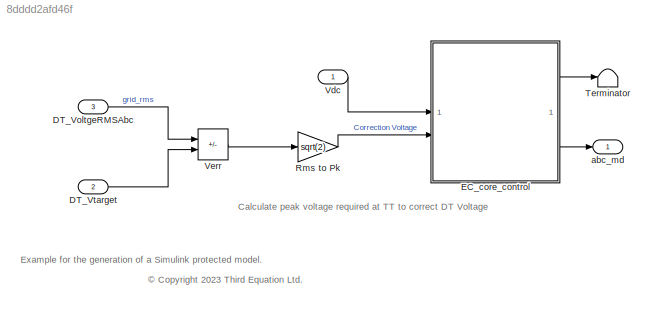
MODEL slx_8dddd2afd46f
KIND model
CONFIG AbsTol = 1e-6
CONFIG EnableMultiTasking = off
CONFIG FixedStep = auto
CONFIG MaxStep = auto
CONFIG MinStep = auto
CONFIG RelTol = 1e-4
CONFIG SampleTimeConstraint = Unconstrained
CONFIG SolverName = FixedStepAuto
CONFIG StartTime = 0.0
CONFIG StopTime = inf
BLOCK [Inport] DT_VoltgeRMSAbc
  OutDataTypeStr = single
  Port = 3
  PortDimensions = 3
  Unit = V
BLOCK [Inport] DT_Vtarget
  OutDataTypeStr = single
  Port = 2
  PortDimensions = 3
  Unit = V
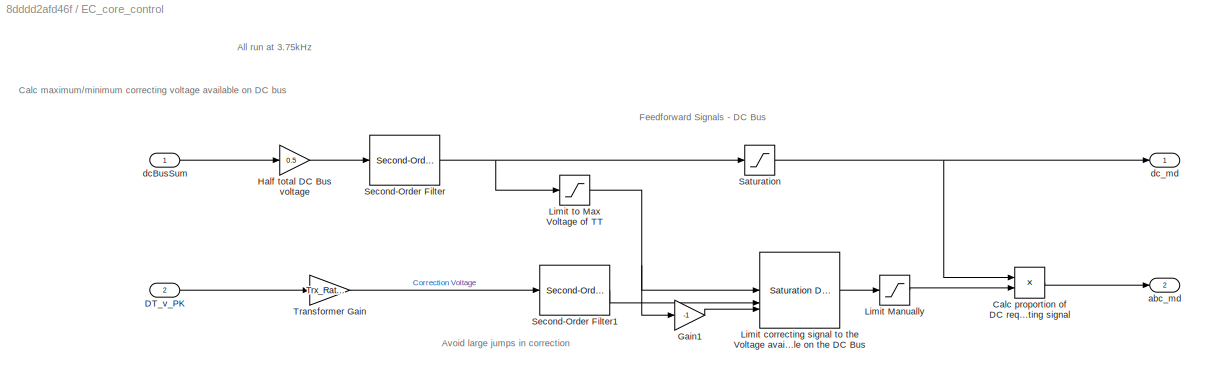
BLOCK [SubSystem] EC_core_control
BLOCK [Product] EC_core_control/Calc proportion of DC required for correcting signal
  Inputs = /*
  OutDataTypeStr = single
BLOCK [Inport] EC_core_control/DT_v_PK
  Port = 2
BLOCK [Gain] EC_core_control/Gain1
  Gain = -1
  OutDataTypeStr = single
  ParamDataTypeStr = single
BLOCK [Gain] EC_core_control/Half total DC Bus voltage
  Gain = 0.5
  OutDataTypeStr = single
  ParamDataTypeStr = single
BLOCK [Saturate] EC_core_control/Limit Manually
  LowerLimit = -400
  OutDataTypeStr = single
  UpperLimit = 400
BLOCK [Reference] EC_core_control/Limit correcting signal to the Voltage available on the DC Bus  REF=simulink/Discontinuities/Saturation
Dynamic
  SourceBlock = simulink/Discontinuities/Saturation\nDynamic
  SourceType = Saturation Dynamic
BLOCK [Saturate] EC_core_control/Limit to Max Voltage of TT
  LowerLimit = 0
  OutDataTypeStr = single
  UpperLimit = Tr_nom_v*sqrt(2)
BLOCK [Saturate] EC_core_control/Saturation
  LowerLimit = 50
  OutDataTypeStr = single
  UpperLimit = 1000
BLOCK [Reference] EC_core_control/Second-Order Filter  REF=eeGeneralControl/Second-Order Filter
  SourceBlock = eeGeneralControl/Second-Order Filter
  SourceType = Second-Order Filter
BLOCK [Reference] EC_core_control/Second-Order Filter1  REF=eeGeneralControl/Second-Order Filter
  SourceBlock = eeGeneralControl/Second-Order Filter
  SourceType = Second-Order Filter
BLOCK [Gain] EC_core_control/Transformer Gain
  Gain = Trx_Ratio
  OutDataTypeStr = single
  ParamDataTypeStr = single
BLOCK [Outport] EC_core_control/abc_md
  Port = 2
BLOCK [Inport] EC_core_control/dcBusSum
  OutDataTypeStr = single
  Unit = V
BLOCK [Outport] EC_core_control/dc_md
BLOCK [Gain] Rms to Pk
  Gain = sqrt(2)
  OutDataTypeStr = single
  ParamDataTypeStr = single
BLOCK [Terminator] Terminator
BLOCK [Inport] Vdc
  OutDataTypeStr = single
  PortDimensions = 1
BLOCK [Sum] Verr
  AccumDataTypeStr = single
  IconShape = rectangular
  Inputs = -+
  OutDataTypeStr = single
BLOCK [Outport] abc_md
  OutDataTypeStr = single
  PortDimensions = 3
ANNOTATION (root): Example for the generation of a Simulink protected model.
ANNOTATION (root): <copyright redacted>
ANNOTATION (root): Calculate peak voltage required at TT to correct DT Voltage
ANNOTATION EC_core_control: All run at 3.75kHz
ANNOTATION EC_core_control: Avoid large jumps in correction
ANNOTATION EC_core_control: Calc maximum/minimum correcting voltage available on DC bus
ANNOTATION EC_core_control: Feedforward Signals - DC Bus
LINE DT_VoltgeRMSAbc:1 -> Verr:1
LINE DT_Vtarget:1 -> Verr:2
LINE EC_core_control/Calc proportion of DC required for correcting signal:1 -> EC_core_control/abc_md:1
LINE EC_core_control/DT_v_PK:1 -> EC_core_control/Transformer Gain:1
LINE EC_core_control/Gain1:1 -> EC_core_control/Limit correcting signal to the Voltage available on the DC Bus:3
LINE EC_core_control/Half total DC Bus voltage:1 -> EC_core_control/Second-Order Filter:1
LINE EC_core_control/Limit Manually:1 -> EC_core_control/Calc proportion of DC required for correcting signal:2
LINE EC_core_control/Limit correcting signal to the Voltage available on the DC Bus:1 -> EC_core_control/Limit Manually:1
NET EC_core_control/Limit to Max Voltage of TT:1 -> EC_core_control/Gain1:1, EC_core_control/Limit correcting signal to the Voltage available on the DC Bus:1
NET EC_core_control/Saturation:1 -> EC_core_control/Calc proportion of DC required for correcting signal:1, EC_core_control/dc_md:1
LINE EC_core_control/Second-Order Filter1:1 -> EC_core_control/Limit correcting signal to the Voltage available on the DC Bus:2
NET EC_core_control/Second-Order Filter:1 -> EC_core_control/Limit to Max Voltage of TT:1, EC_core_control/Saturation:1
LINE EC_core_control/Transformer Gain:1 -> EC_core_control/Second-Order Filter1:1
LINE EC_core_control/dcBusSum:1 -> EC_core_control/Half total DC Bus voltage:1
LINE EC_core_control:1 -> Terminator:1
LINE EC_core_control:2 -> abc_md:1
LINE Rms to Pk:1 -> EC_core_control:2
LINE Vdc:1 -> EC_core_control:1
LINE Verr:1 -> Rms to Pk:1
note: NET lines group one-source signal fan-out (src -> all destinations, sorted); 1:1 wires keep LINE
